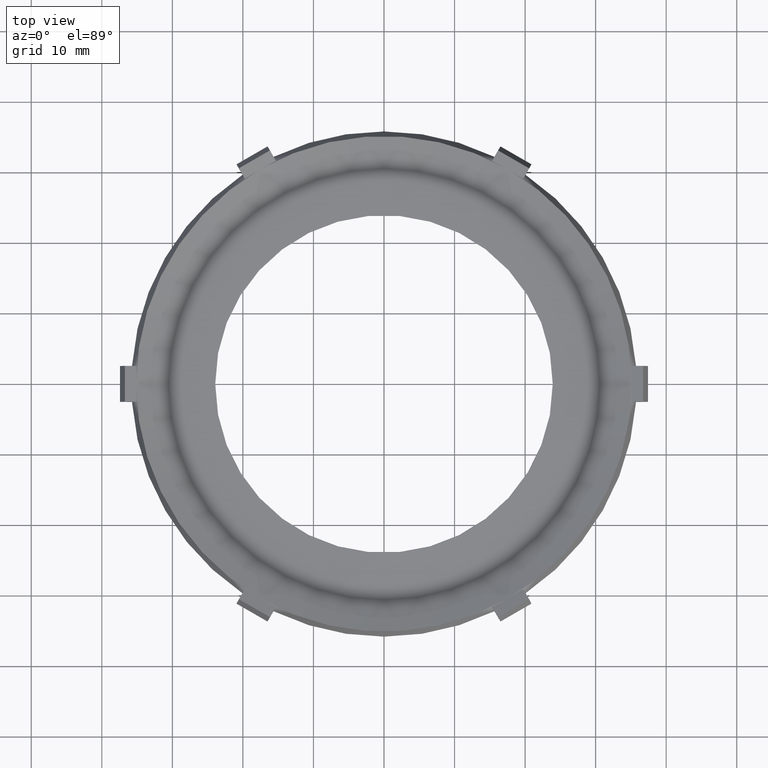
[diagram: clean part render]
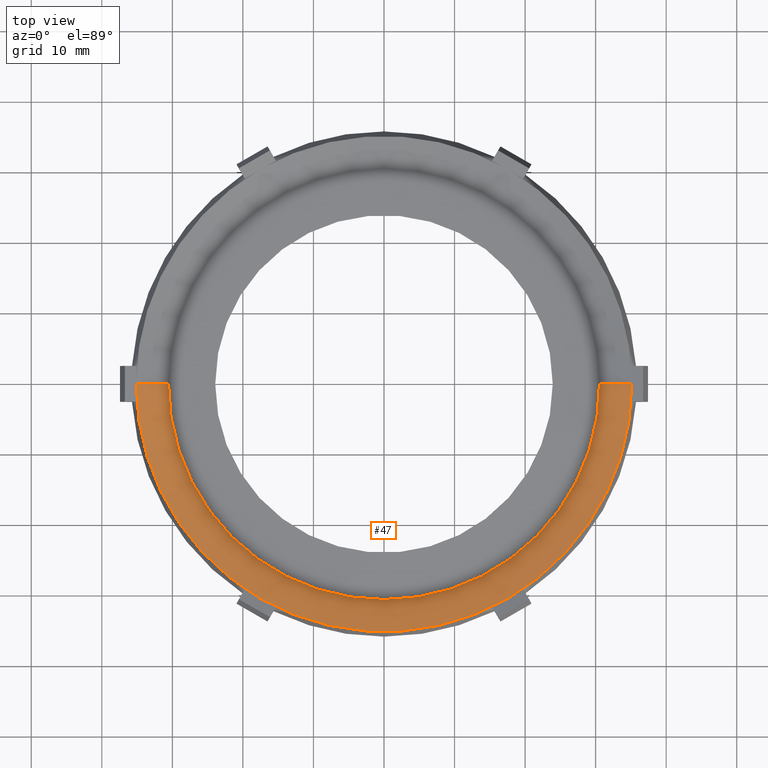
[diagram: same view with one face highlighted and labeled with its STEP entity id]
A machine part, top view. The second image highlights one B-rep face of the part: STEP entity #47.
In plain terms, the highlighted conical surface has half-angle 70 deg.
Its self-contained STEP definition (entity closure, byte-faithful):
#2 = VERTEX_POINT ( 'NONE', #727 ) ;
#3 = VERTEX_POINT ( 'NONE', #726 ) ;
#4 = ORIENTED_EDGE ( 'NONE', *, *, #6, .T. ) ;
#5 = ORIENTED_EDGE ( 'NONE', *, *, #8, .F. ) ;
#6 = EDGE_CURVE ( 'NONE', #2, #45, #848, .T. ) ;
#7 = VERTEX_POINT ( 'NONE', #844 ) ;
#8 = EDGE_CURVE ( 'NONE', #16, #45, #836, .T. ) ;
#9 = EDGE_CURVE ( 'NONE', #7, #16, #831, .T. ) ;
#10 = VERTEX_POINT ( 'NONE', #756 ) ;
#11 = EDGE_CURVE ( 'NONE', #3, #2, #754, .T. ) ;
#12 = EDGE_CURVE ( 'NONE', #10, #7, #787, .T. ) ;
#15 = ORIENTED_EDGE ( 'NONE', *, *, #9, .F. ) ;
#16 = VERTEX_POINT ( 'NONE', #782 ) ;
#18 = EDGE_CURVE ( 'NONE', #3, #10, #781, .T. ) ;
#41 = ORIENTED_EDGE ( 'NONE', *, *, #11, .T. ) ;
#42 = ORIENTED_EDGE ( 'NONE', *, *, #12, .F. ) ;
#45 = VERTEX_POINT ( 'NONE', #915 ) ;
#46 = ORIENTED_EDGE ( 'NONE', *, *, #18, .F. ) ;
#47 = ADVANCED_FACE ( 'NONE', ( #910 ), #907, .F. ) ;
#49 = EDGE_LOOP ( 'NONE', ( #41, #4, #5, #15, #42, #46 ) ) ;
#726 = CARTESIAN_POINT ( 'NONE',  ( 1.202889546860454800, 0.0000000000000000000, -0.005514642167915289500 ) ) ;
#727 = CARTESIAN_POINT ( 'NONE',  ( -1.202889546860454800, 1.583280753875847200E-016, -0.005514642167915289500 ) ) ;
#750 = DIRECTION ( 'NONE',  ( -1.000000000000000000, 0.0000000000000000000, 0.0000000000000000000 ) ) ;
#751 = DIRECTION ( 'NONE',  ( -0.0000000000000000000, -0.0000000000000000000, -1.000000000000000000 ) ) ;
#752 = CARTESIAN_POINT ( 'NONE',  ( 0.0000000000000000000, 0.0000000000000000000, -0.005514642167915289500 ) ) ;
#753 = AXIS2_PLACEMENT_3D ( 'NONE', #752, #751, #750 ) ;
#754 = CIRCLE ( 'NONE', #753, 1.202889546860454800 ) ;
#755 = CARTESIAN_POINT ( 'NONE',  ( 0.0000000000000000000, 0.0000000000000000000, 0.05999999999999990800 ) ) ;
#756 = CARTESIAN_POINT ( 'NONE',  ( 1.382889546860455000, 0.0000000000000000000, 0.05999999999999990800 ) ) ;
#757 = DIRECTION ( 'NONE',  ( -1.000000000000000000, 0.0000000000000000000, 0.0000000000000000000 ) ) ;
#778 = DIRECTION ( 'NONE',  ( 0.9396926207859105400, 0.0000000000000000000, 0.3420201433256630000 ) ) ;
#779 = VECTOR ( 'NONE', #778, 39.37007874015748900 ) ;
#780 = CARTESIAN_POINT ( 'NONE',  ( 1.202889546860454800, 0.0000000000000000000, -0.005514642167915289500 ) ) ;
#781 = LINE ( 'NONE', #780, #779 ) ;
#782 = CARTESIAN_POINT ( 'NONE',  ( -0.6914447734302168200, -1.197617478209111800, 0.06000000000000010900 ) ) ;
#784 = DIRECTION ( 'NONE',  ( -1.000000000000000000, 0.0000000000000000000, 0.0000000000000000000 ) ) ;
#785 = DIRECTION ( 'NONE',  ( -0.0000000000000000000, -0.0000000000000000000, -1.000000000000000000 ) ) ;
#786 = AXIS2_PLACEMENT_3D ( 'NONE', #755, #785, #784 ) ;
#787 = CIRCLE ( 'NONE', #786, 1.382889546860454700 ) ;
#829 = DIRECTION ( 'NONE',  ( -0.0000000000000000000, -0.0000000000000000000, -1.000000000000000000 ) ) ;
#830 = AXIS2_PLACEMENT_3D ( 'NONE', #837, #829, #757 ) ;
#831 = CIRCLE ( 'NONE', #830, 1.382889546860454700 ) ;
#832 = DIRECTION ( 'NONE',  ( -1.000000000000000000, 0.0000000000000000000, 0.0000000000000000000 ) ) ;
#833 = DIRECTION ( 'NONE',  ( -0.0000000000000000000, -0.0000000000000000000, -1.000000000000000000 ) ) ;
#834 = CARTESIAN_POINT ( 'NONE',  ( 0.0000000000000000000, 0.0000000000000000000, 0.05999999999999990800 ) ) ;
#835 = AXIS2_PLACEMENT_3D ( 'NONE', #834, #833, #832 ) ;
#836 = CIRCLE ( 'NONE', #835, 1.382889546860454700 ) ;
#837 = CARTESIAN_POINT ( 'NONE',  ( 0.0000000000000000000, 0.0000000000000000000, 0.05999999999999990800 ) ) ;
#844 = CARTESIAN_POINT ( 'NONE',  ( 0.6914447734302418000, -1.197617478209097600, 0.06000000000000010900 ) ) ;
#845 = DIRECTION ( 'NONE',  ( -0.9396926207859105400, 1.150753554054427600E-016, 0.3420201433256630000 ) ) ;
#846 = VECTOR ( 'NONE', #845, 39.37007874015748900 ) ;
#847 = CARTESIAN_POINT ( 'NONE',  ( -1.202889546860454800, 1.473066182031833000E-016, -0.005514642167915289500 ) ) ;
#848 = LINE ( 'NONE', #847, #846 ) ;
#904 = DIRECTION ( 'NONE',  ( 1.000000000000000000, 0.0000000000000000000, 0.0000000000000000000 ) ) ;
#905 = DIRECTION ( 'NONE',  ( 0.0000000000000000000, 0.0000000000000000000, 1.000000000000000000 ) ) ;
#906 = AXIS2_PLACEMENT_3D ( 'NONE', #909, #905, #904 ) ;
#907 = CONICAL_SURFACE ( 'NONE', #906, 1.202889546860454800, 1.221730476396036800 ) ;
#909 = CARTESIAN_POINT ( 'NONE',  ( 0.0000000000000000000, 0.0000000000000000000, -0.005514642167915289500 ) ) ;
#910 = FACE_OUTER_BOUND ( 'NONE', #49, .T. ) ;
#915 = CARTESIAN_POINT ( 'NONE',  ( -1.382889546860455000, -9.656671686230743400E-015, 0.05999999999999997700 ) ) ;